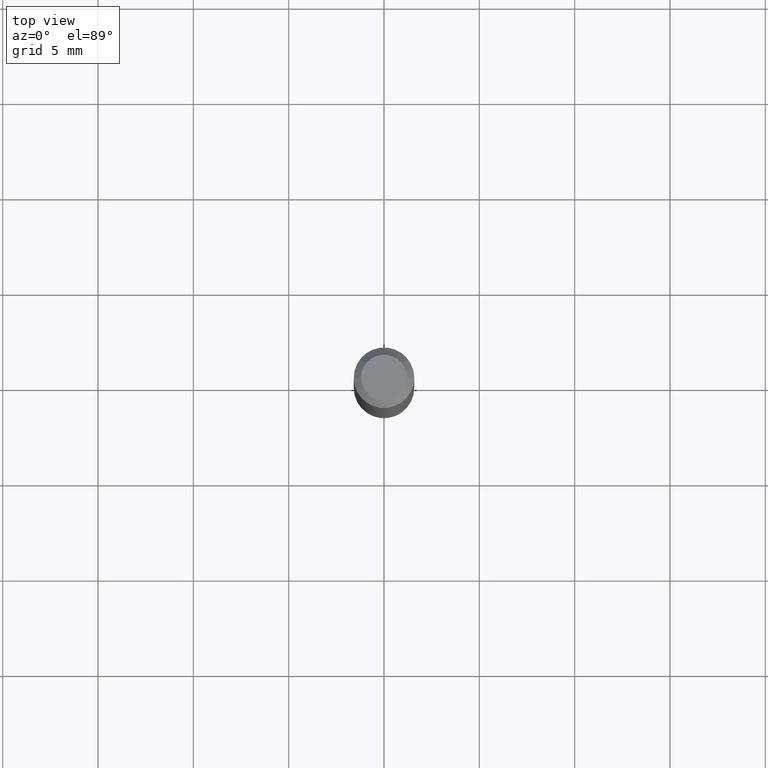
[diagram: clean part render]
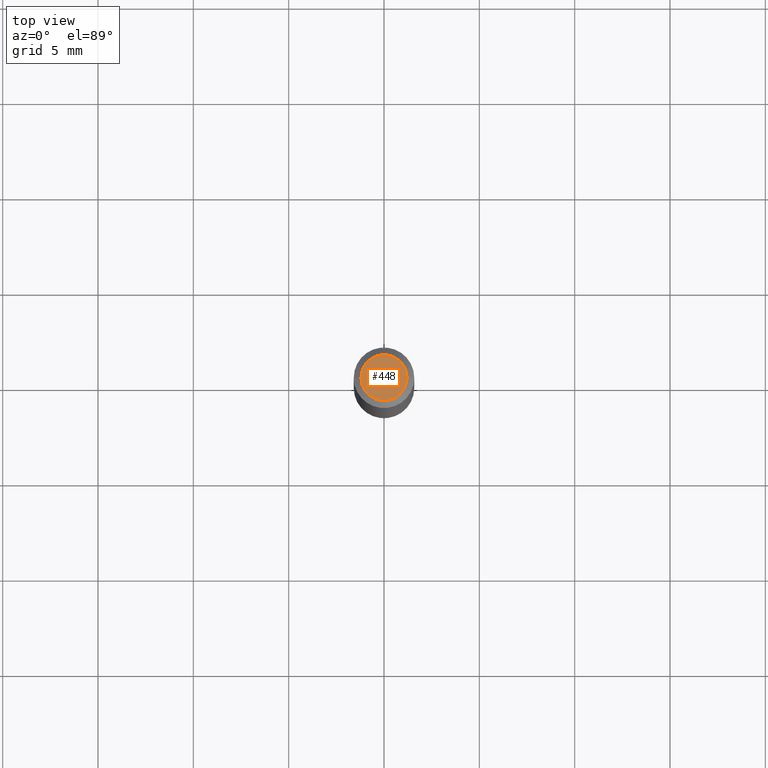
[diagram: same view with one face highlighted and labeled with its STEP entity id]
A machine part, top view. The second image highlights one B-rep face of the part: STEP entity #448.
In plain terms, the highlighted planar face has unit normal (0, -0, -1).
Its self-contained STEP definition (entity closure, byte-faithful):
#2 = PLANE ( 'NONE',  #446 ) ;
#9 = VERTEX_POINT ( 'NONE', #164 ) ;
#11 = EDGE_CURVE ( 'NONE', #308, #9, #283, .T. ) ;
#14 = ORIENTED_EDGE ( 'NONE', *, *, #11, .T. ) ;
#17 = ORIENTED_EDGE ( 'NONE', *, *, #192, .T. ) ;
#51 = CARTESIAN_POINT ( 'NONE',  ( 8.117327640808780352E-46, -1.158939255633829398E-31, -3.319333953587241620E-17 ) ) ;
#58 = CARTESIAN_POINT ( 'NONE',  ( 8.117327640808780352E-46, -1.158939255633829398E-31, -3.319333953587241620E-17 ) ) ;
#123 = AXIS2_PLACEMENT_3D ( 'NONE', #51, #315, #425 ) ;
#133 = DIRECTION ( 'NONE',  ( 1.000000000000000000, -6.982962677686267499E-15, 4.876681293081646444E-29 ) ) ;
#146 = DIRECTION ( 'NONE',  ( 2.438088387897960049E-29, -3.491481338843145188E-15, -1.000000000000000000 ) ) ;
#164 = CARTESIAN_POINT ( 'NONE',  ( 0.04749999999999999362, -4.035134999187579116E-16, -3.319333953586984624E-17 ) ) ;
#179 = DIRECTION ( 'NONE',  ( -2.445468806185136597E-29, 3.491481338843145583E-15, 1.000000000000000000 ) ) ;
#183 = CARTESIAN_POINT ( 'NONE',  ( 3.316907271900976096E-16, 0.04749999999999999362, -1.824420333629856199E-16 ) ) ;
#192 = EDGE_CURVE ( 'NONE', #9, #308, #356, .T. ) ;
#283 = CIRCLE ( 'NONE', #123, 0.04749999999999999362 ) ;
#295 = DIRECTION ( 'NONE',  ( -1.000000000000000000, 6.982962677686265922E-15, -4.876176775795935793E-29 ) ) ;
#308 = VERTEX_POINT ( 'NONE', #366 ) ;
#315 = DIRECTION ( 'NONE',  ( -2.445468806185136597E-29, 3.491481338843145583E-15, 1.000000000000000000 ) ) ;
#334 = FACE_OUTER_BOUND ( 'NONE', #354, .T. ) ;
#354 = EDGE_LOOP ( 'NONE', ( #14, #17 ) ) ;
#356 = CIRCLE ( 'NONE', #391, 0.04749999999999999362 ) ;
#366 = CARTESIAN_POINT ( 'NONE',  ( -0.04749999999999999362, 3.578768372314210506E-16, -3.319333953587482593E-17 ) ) ;
#391 = AXIS2_PLACEMENT_3D ( 'NONE', #58, #179, #133 ) ;
#425 = DIRECTION ( 'NONE',  ( 1.000000000000000000, -6.982962677686267499E-15, 4.876681293081646444E-29 ) ) ;
#446 = AXIS2_PLACEMENT_3D ( 'NONE', #183, #146, #295 ) ;
#448 = ADVANCED_FACE ( 'NONE', ( #334 ), #2, .F. ) ;